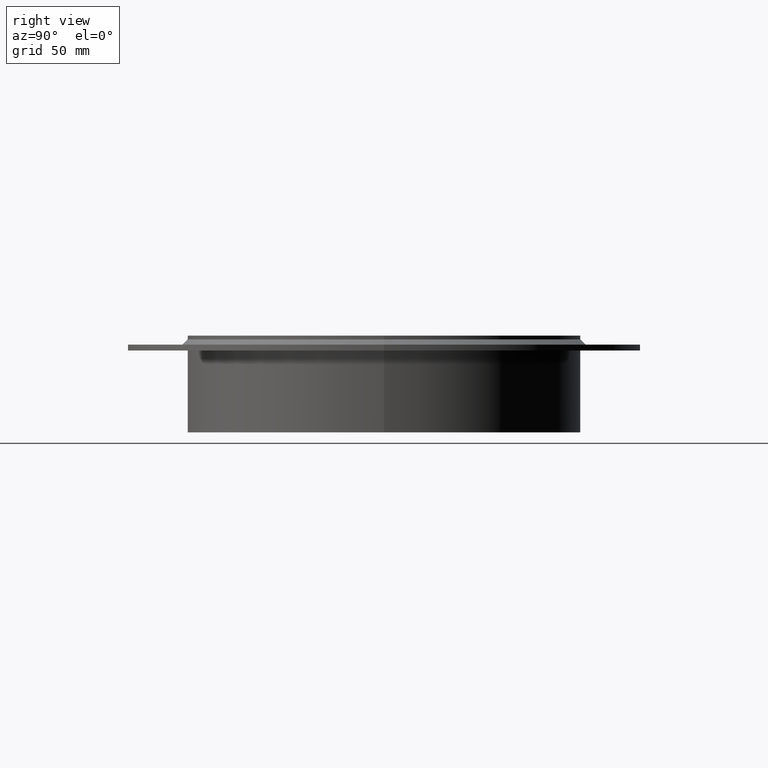
[diagram: clean part render]
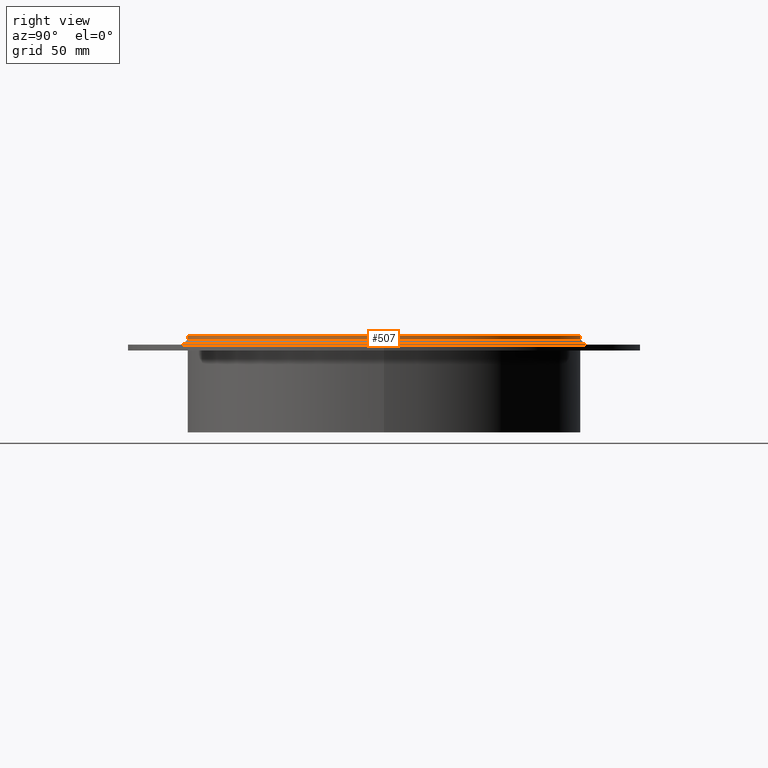
[diagram: same view with one face highlighted and labeled with its STEP entity id]
A machine part, right view. The second image highlights one B-rep face of the part: STEP entity #507.
In plain terms, the highlighted cylindrical surface (bore or boss wall) has radius 132 mm, axis along (0, 0, -1).
Its self-contained STEP definition (entity closure, byte-faithful):
#420=CARTESIAN_POINT('',(132.0,-1.616534E-014,-2.500000000000003));
#421=VERTEX_POINT('',#420);
#422=CARTESIAN_POINT('',(0.0,0.0,-2.500000000000003));
#423=DIRECTION('',(0.0,0.0,-1.0));
#424=DIRECTION('',(-1.0,0.0,0.0));
#425=AXIS2_PLACEMENT_3D('',#422,#423,#424);
#426=CIRCLE('',#425,132.0);
#427=EDGE_CURVE('',#421,#421,#426,.T.);
#488=CARTESIAN_POINT('',(0.0,0.0,0.0));
#489=DIRECTION('',(0.0,0.0,-1.0));
#490=DIRECTION('',(-1.0,0.0,0.0));
#491=AXIS2_PLACEMENT_3D('',#488,#489,#490);
#492=CYLINDRICAL_SURFACE('',#491,132.0);
#493=CARTESIAN_POINT('',(132.0,1.616534E-014,0.0));
#494=VERTEX_POINT('',#493);
#495=CARTESIAN_POINT('',(0.0,0.0,0.0));
#496=DIRECTION('',(0.0,0.0,-1.0));
#497=DIRECTION('',(-1.0,0.0,0.0));
#498=AXIS2_PLACEMENT_3D('',#495,#496,#497);
#499=CIRCLE('',#498,132.0);
#500=EDGE_CURVE('',#494,#494,#499,.T.);
#501=ORIENTED_EDGE('',*,*,#500,.T.);
#502=EDGE_LOOP('',(#501));
#503=FACE_OUTER_BOUND('',#502,.T.);
#504=ORIENTED_EDGE('',*,*,#427,.F.);
#505=EDGE_LOOP('',(#504));
#506=FACE_BOUND('',#505,.T.);
#507=ADVANCED_FACE('',(#503,#506),#492,.T.);